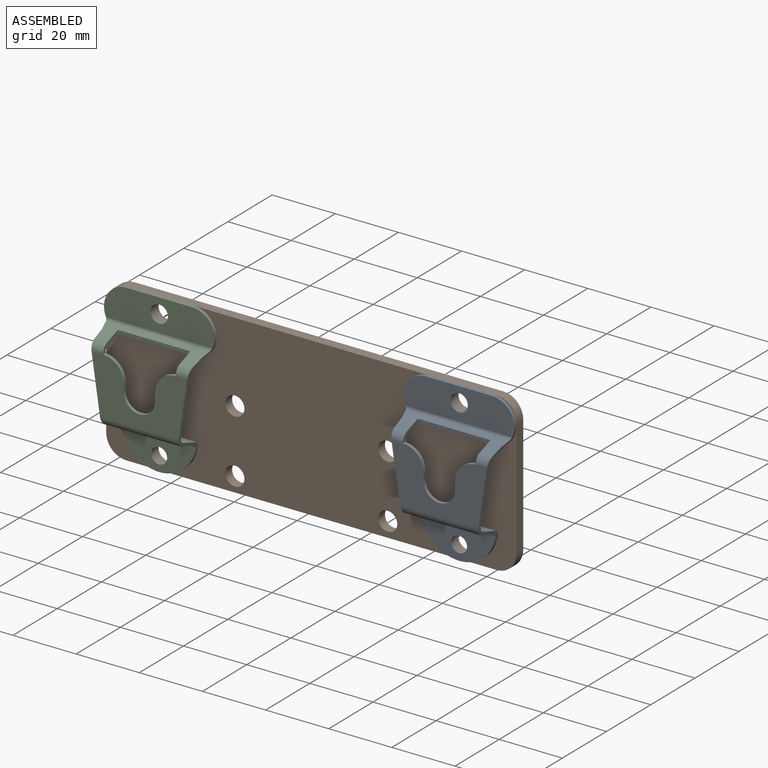
[diagram: assembled view]
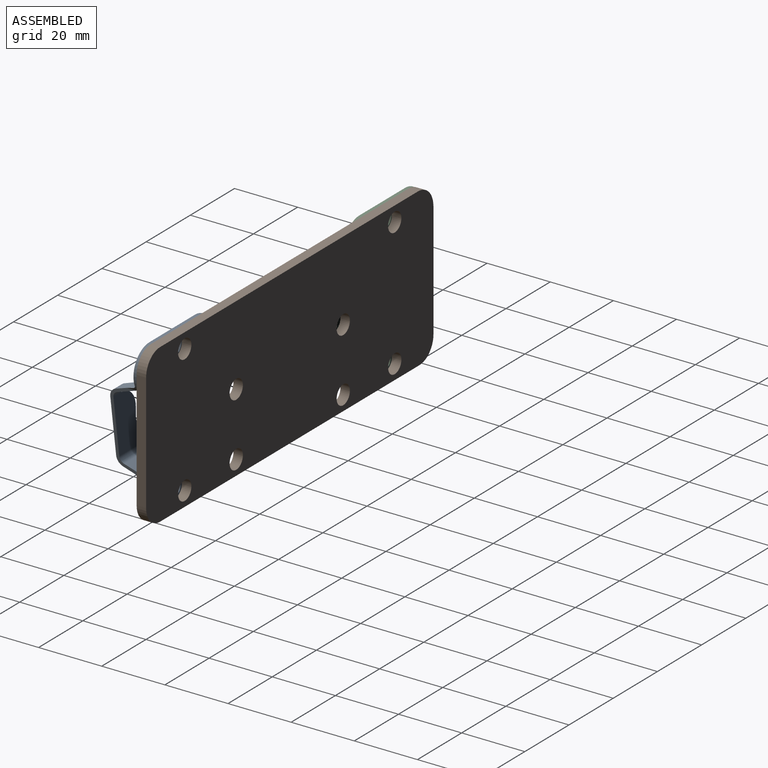
[diagram: assembled view, second angle]
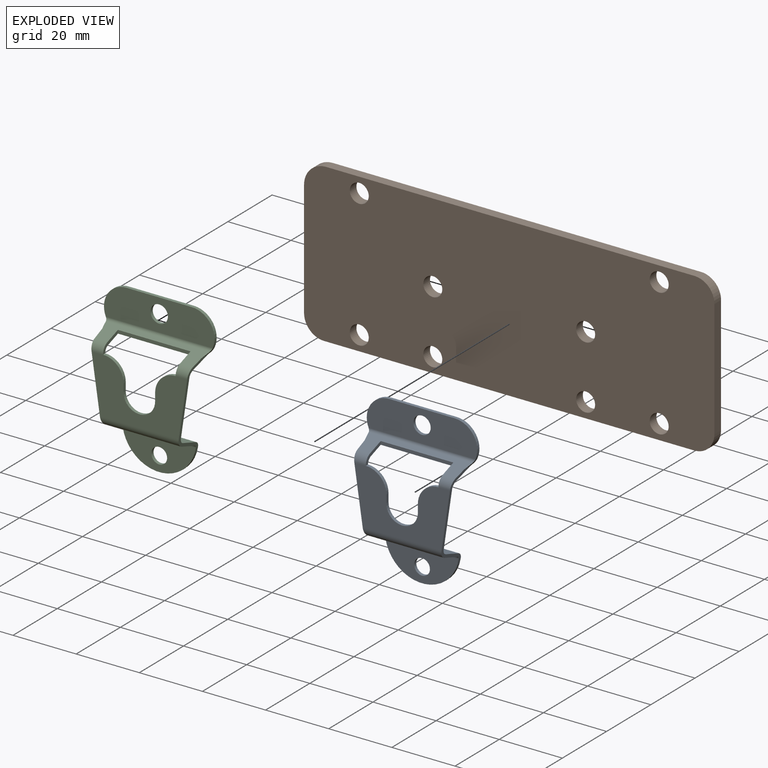
[diagram: exploded view]
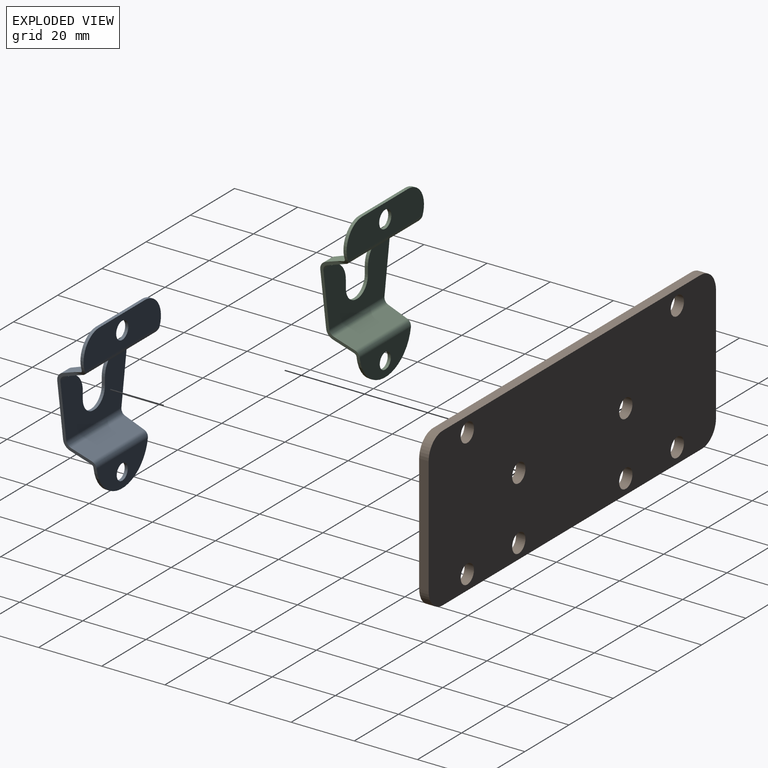
[diagram: exploded view, second angle]
ASSEMBLY  parts=3 mates=6
PART A: 36 faces, bbox 35.1x50.1x10.1 mm
  f0: plane 30.27x18mm, normal (0,0,1), area 349.6mm2, adj f1,f2,f10,f12,f13,f26,f27,f28
  f1: cylinder r=3mm len=4.05mm, axis (-1,0,0), area 14.3mm2, adj f0,f3,f13,f32
  f2: cylinder r=3mm len=4.05mm, axis (-1,0,0), area 14.3mm2, adj f0,f3,f12,f33
  f3: plane 32.95x6.41mm, normal (0,0.94,0.33), area 96.8mm2, adj f1,f2,f12,f13,f15,f17,f20,f31
  f4: plane 30.27x18mm, normal (0,0,-1), area 349.6mm2, adj f5,f6,f12,f13,f23,f26,f27,f28
  f5: cylinder r=2mm len=3.91mm, axis (-1,0,0), area 9.3mm2, adj f4,f7,f13,f32
  f6: cylinder r=2mm len=3.91mm, axis (-1,0,0), area 9.3mm2, adj f4,f7,f12,f33
  f7: plane 31.49x6.33mm, normal (0,-0.94,-0.33), area 101.4mm2, adj f5,f6,f12,f13,f25,f31,f32,f33
  f8: cylinder r=1mm len=23.45mm, axis (-1,0,0), area 28.7mm2, adj f9,f11,f12,f13
  f9: plane 24.11x6.33mm, normal (0,-0.94,0.33), area 159.5mm2, adj f8,f10,f12,f13
  f10: cylinder r=3mm len=24.95mm, axis (-1,0,0), area 90.5mm2, adj f0,f9,f12,f13
  f11: plane 23.17x10mm, normal (0,0,1), area 155.9mm2, adj f8,f18,f35
  f12: plane 28.18x10.06mm, normal (0.99,-0.15,0), area 38.4mm2, adj f0,f2,f3,f4,f6,f7,f8,f9
  f13: plane 28.18x10.06mm, normal (-0.99,-0.15,0), area 38.4mm2, adj f0,f1,f3,f4,f5,f7,f8,f9
  f14: plane 23.17x10mm, normal (0,0,-1), area 155.9mm2, adj f18,f24,f35
  f15: cylinder r=7.18mm len=11.89mm, axis (0,0,-1), area 18.1mm2, adj f3,f13,f16,f19,f20,f21,f25
  f16: plane 20.64x1mm, normal (0,1,0), area 20.6mm2, adj f15,f17,f19,f21
  f17: cylinder r=7.18mm len=11.89mm, axis (0,0,-1), area 18.1mm2, adj f3,f12,f16,f19,f20,f21,f25
  f18: cylinder r=11.71mm len=23.17mm, axis (0,0,-1), area 33.4mm2, adj f11,f12,f13,f14
  f19: plane 35x10mm, normal (0,0,-1), area 303mm2, adj f15,f16,f17,f25,f34
  f20: cylinder r=1mm len=33.85mm, axis (-1,0,0), area 41.1mm2, adj f3,f15,f17,f21
  f21: plane 35x10mm, normal (0,0,1), area 303mm2, adj f15,f16,f17,f20,f34
  f22: plane 24.39x6.33mm, normal (0,0.94,-0.33), area 161.4mm2, adj f12,f13,f23,f24
  f23: cylinder r=2mm len=24.95mm, axis (-1,0,0), area 60.8mm2, adj f4,f12,f13,f22
  f24: cylinder r=2mm len=23.73mm, axis (-1,0,0), area 57.8mm2, adj f12,f13,f14,f22
  f25: cylinder r=2mm len=33.85mm, axis (-1,0,0), area 80.4mm2, adj f7,f15,f17,f19
  f26: plane 2.5x1mm, normal (1,0,0), area 2.5mm2, adj f0,f4,f27,f29
  f27: cylinder r=5mm len=10mm, axis (0,0,1), area 15.7mm2, adj f0,f4,f26,f28
  f28: plane 2.5x1mm, normal (-1,0,0), area 2.5mm2, adj f0,f4,f27,f30
  f29: cylinder r=6.5mm len=6.5mm, axis (0,0,1), area 10.2mm2, adj f0,f4,f26,f32
  f30: cylinder r=6.5mm len=6.5mm, axis (0,0,1), area 10.2mm2, adj f0,f4,f28,f33
  f31: plane 23x1.06mm, normal (0,0,1), area 24.4mm2, adj f3,f7,f32,f33
  f32: plane 6.75x4.5mm, normal (1,0,0), area 7.9mm2, adj f1,f3,f5,f7,f29,f31
  f33: plane 6.75x4.5mm, normal (-1,0,0), area 7.9mm2, adj f2,f3,f6,f7,f30,f31
  f34: cylinder r=2.75mm len=5.5mm, axis (0,0,1), area 17.3mm2, adj f19,f21
  f35: cylinder r=2.5mm len=5mm, axis (0,0,1), area 15.7mm2, adj f11,f14
PART B: 18 faces, bbox 130x3x50 mm
  f0: plane 116.65x3mm, normal (0,0,1), area 349.9mm2, adj f1,f7,f8,f9
  f1: cylinder r=7mm len=7mm, axis (0,1,0), area 33mm2, adj f0,f2,f8,f9
  f2: plane 36.65x3mm, normal (-1,0,0), area 110mm2, adj f1,f3,f8,f9
  f3: cylinder r=6.35mm len=6.35mm, axis (0,1,0), area 29.9mm2, adj f2,f4,f8,f9
  f4: plane 117.3x3mm, normal (0,0,-1), area 351.9mm2, adj f3,f5,f8,f9
  f5: cylinder r=6.35mm len=6.35mm, axis (0,1,0), area 29.9mm2, adj f4,f6,f8,f9
  f6: plane 37.3x3mm, normal (1,0,0), area 111.9mm2, adj f5,f7,f8,f9
  f7: cylinder r=6.35mm len=6.35mm, axis (0,1,0), area 29.9mm2, adj f0,f6,f8,f9
  f8: plane 130x50mm, normal (0,-1,0), area 6237.3mm2, adj f0,f1,f2,f3,f4,f5,f6,f7
  f9: plane 130x50mm, normal (0,1,0), area 6237.3mm2, adj f0,f1,f2,f3,f4,f5,f6,f7
  f10: cylinder r=3mm len=6mm, axis (0,-1,0), area 56.5mm2, adj f8,f9
  f11: cylinder r=3mm len=6mm, axis (0,-1,0), area 56.5mm2, adj f8,f9
  f12: cylinder r=3mm len=6mm, axis (0,-1,0), area 56.5mm2, adj f8,f9
  f13: cylinder r=3mm len=6mm, axis (0,-1,0), area 56.5mm2, adj f8,f9
  f14: cylinder r=3mm len=6mm, axis (0,-1,0), area 56.5mm2, adj f8,f9
  f15: cylinder r=3mm len=6mm, axis (0,-1,0), area 56.5mm2, adj f8,f9
  f16: cylinder r=3mm len=6mm, axis (0,-1,0), area 56.5mm2, adj f8,f9
  f17: cylinder r=3mm len=6mm, axis (0,-1,0), area 56.5mm2, adj f8,f9
PART C: same geometry as A
PLACE A rot(axis=(1,0,0),90deg) t=(31.2,1.13,-6.94)mm
PLACE B t=(-16.3,4.13,-6.94)mm fixed
PLACE C rot(axis=(1,0,0),90deg) t=(-63.8,1.13,-6.94)mm
MATE planar A.f19 <-> B.f8  axis (0,1,0) through (20.88,1.13,43.06)mm
MATE cylindrical B.f10 <-> C.f34  axis (0,-1,0) through (-63.8,1.13,38.31)mm
MATE planar C.f15 <-> B.f8  axis (0,1,0) through (-74.12,1.13,35.88)mm
MATE cylindrical A.f34 <-> B.f15  axis (0,-1,0) through (31.2,0.63,38.31)mm
MATE parallel B.f8 <-> C.f17  axis (0,-1,0) through (-16.28,1.13,18.24)mm
MATE parallel A.f17 <-> B.f14  axis (0,1,0) through (41.52,1.13,35.88)mm
